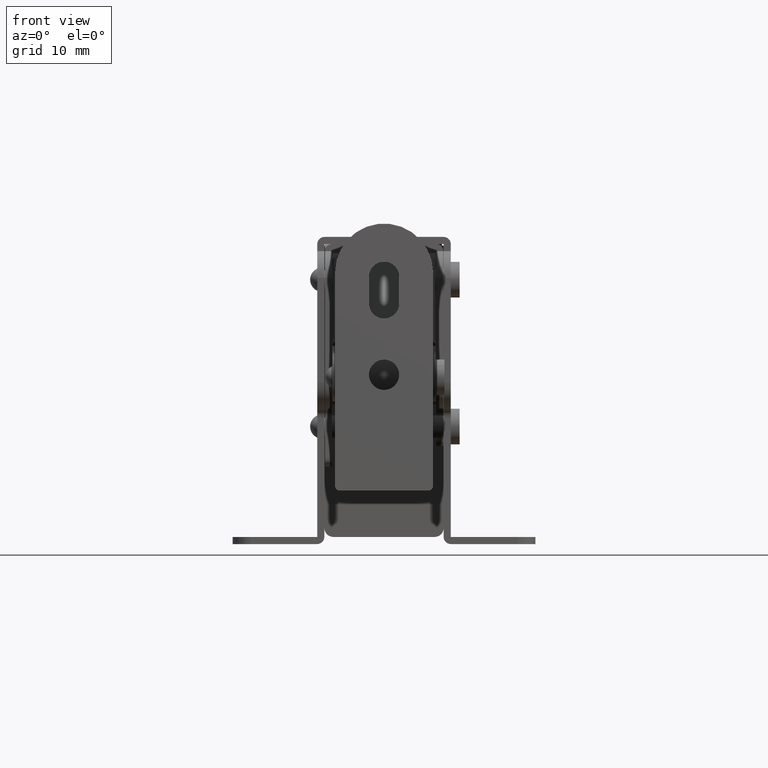
[diagram: clean part render]
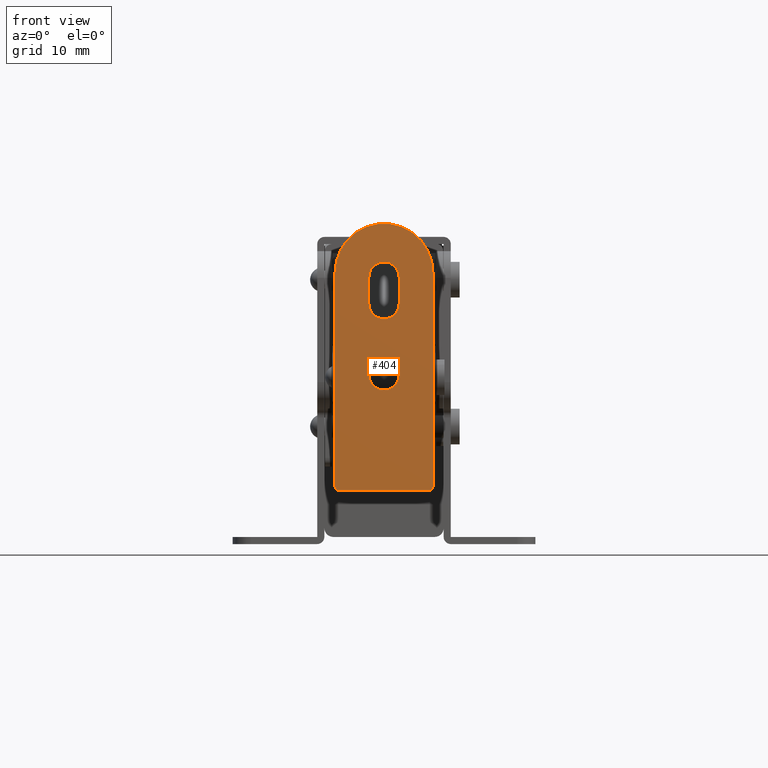
[diagram: same view with one face highlighted and labeled with its STEP entity id]
A machine part, front view. The second image highlights one B-rep face of the part: STEP entity #404.
In plain terms, the highlighted planar face has unit normal (0, 1, 0).
Its self-contained STEP definition (entity closure, byte-faithful):
#404=ADVANCED_FACE('',(#2358,#2359,#2360),#2357,.F.);
#2357=PLANE('',#4407);
#2358=FACE_OUTER_BOUND('',#4408,.T.);
#2359=FACE_BOUND('',#4409,.T.);
#2360=FACE_BOUND('',#4410,.T.);
#4404=CARTESIAN_POINT('',(-6.60000000000E+00,0.00000000000E+00,3.29999659000E+01));
#4405=DIRECTION('',(0.00000000000E+00,-1.00000000000E+00,0.00000000000E+00));
#4406=DIRECTION('',(0.00000000000E+00,0.00000000000E+00,-1.00000000000E+00));
#4407=AXIS2_PLACEMENT_3D('',#4404,#4405,#4406);
#4408=EDGE_LOOP('',(#5977,#5978,#5979,#5980,#5981,#5982));
#4409=EDGE_LOOP('',(#5983,#5984,#5985,#5986));
#4410=EDGE_LOOP('',(#5987,#5988,#5989));
#5977=ORIENTED_EDGE('',*,*,#6966,.F.);
#5978=ORIENTED_EDGE('',*,*,#6967,.T.);
#5979=ORIENTED_EDGE('',*,*,#6968,.T.);
#5980=ORIENTED_EDGE('',*,*,#6969,.T.);
#5981=ORIENTED_EDGE('',*,*,#6970,.T.);
#5982=ORIENTED_EDGE('',*,*,#6971,.T.);
#5983=ORIENTED_EDGE('',*,*,#6972,.T.);
#5984=ORIENTED_EDGE('',*,*,#6973,.T.);
#5985=ORIENTED_EDGE('',*,*,#6974,.T.);
#5986=ORIENTED_EDGE('',*,*,#6975,.T.);
#5987=ORIENTED_EDGE('',*,*,#6976,.T.);
#5988=ORIENTED_EDGE('',*,*,#6977,.T.);
#5989=ORIENTED_EDGE('',*,*,#6978,.T.);
#6966=EDGE_CURVE('',#10300,#10301,#10302,.T.);
#6967=EDGE_CURVE('',#10300,#10308,#10309,.T.);
#6968=EDGE_CURVE('',#10308,#10315,#10316,.T.);
#6969=EDGE_CURVE('',#10315,#10322,#10323,.T.);
#6970=EDGE_CURVE('',#10322,#10329,#10330,.T.);
#6971=EDGE_CURVE('',#10329,#10301,#10336,.T.);
#6972=EDGE_CURVE('',#10342,#10343,#10344,.T.);
#6973=EDGE_CURVE('',#10343,#10350,#10351,.T.);
#6974=EDGE_CURVE('',#10350,#10357,#10358,.T.);
#6975=EDGE_CURVE('',#10357,#10342,#10364,.T.);
#6976=EDGE_CURVE('',#10370,#10371,#10372,.T.);
#6977=EDGE_CURVE('',#10371,#10378,#10379,.T.);
#6978=EDGE_CURVE('',#10378,#10370,#10385,.T.);
#10300=VERTEX_POINT('',#13872);
#10301=VERTEX_POINT('',#13873);
#10302=LINE('',#13874,#13875);
#10308=VERTEX_POINT('',#13877);
#10309=CIRCLE('',#13881,5.00000000000E-01);
#10315=VERTEX_POINT('',#13882);
#10316=LINE('',#13883,#13884);
#10322=VERTEX_POINT('',#13886);
#10323=CIRCLE('',#13890,5.00000000000E-01);
#10329=VERTEX_POINT('',#13891);
#10330=LINE('',#13892,#13893);
#10336=CIRCLE('',#13898,5.50000000000E+00);
#10342=VERTEX_POINT('',#13899);
#10343=VERTEX_POINT('',#13900);
#10344=CIRCLE('',#13904,1.70000000000E+00);
#10350=VERTEX_POINT('',#13905);
#10351=LINE('',#13906,#13907);
#10357=VERTEX_POINT('',#13909);
#10358=CIRCLE('',#13913,1.70000000000E+00);
#10364=LINE('',#13914,#13915);
#10370=VERTEX_POINT('',#13917);
#10371=VERTEX_POINT('',#13918);
#10372=CIRCLE('',#13922,1.70000000000E+00);
#10378=VERTEX_POINT('',#13923);
#10379=CIRCLE('',#13927,1.70000000000E+00);
#10385=CIRCLE('',#13931,1.70000000000E+00);
#13872=CARTESIAN_POINT('',(5.50000000000E+00,0.00000000000E+00,5.00000000000E-01));
#13873=CARTESIAN_POINT('',(5.50000000000E+00,0.00000000000E+00,2.44999690000E+01));
#13874=CARTESIAN_POINT('',(5.50000000000E+00,0.00000000000E+00,5.00000000000E-01));
#13875=VECTOR('',#13876,2.39999690000E+01);
#13876=DIRECTION('',(0.00000000000E+00,0.00000000000E+00,1.00000000000E+00));
#13877=CARTESIAN_POINT('',(5.00000000000E+00,0.00000000000E+00,0.00000000000E+00));
#13878=CARTESIAN_POINT('',(5.00000000000E+00,0.00000000000E+00,5.00000000000E-01));
#13879=DIRECTION('',(-0.00000000000E+00,1.00000000000E+00,0.00000000000E+00));
#13880=DIRECTION('',(-0.00000000000E+00,-0.00000000000E+00,1.00000000000E+00));
#13881=AXIS2_PLACEMENT_3D('',#13878,#13879,#13880);
#13882=CARTESIAN_POINT('',(-5.00000000000E+00,0.00000000000E+00,0.00000000000E+00));
#13883=CARTESIAN_POINT('',(5.00000000000E+00,0.00000000000E+00,0.00000000000E+00));
#13884=VECTOR('',#13885,1.00000000000E+01);
#13885=DIRECTION('',(-1.00000000000E+00,0.00000000000E+00,0.00000000000E+00));
#13886=CARTESIAN_POINT('',(-5.50000000000E+00,0.00000000000E+00,5.00000000000E-01));
#13887=CARTESIAN_POINT('',(-5.00000000000E+00,0.00000000000E+00,5.00000000000E-01));
#13888=DIRECTION('',(-0.00000000000E+00,1.00000000000E+00,0.00000000000E+00));
#13889=DIRECTION('',(-0.00000000000E+00,-0.00000000000E+00,1.00000000000E+00));
#13890=AXIS2_PLACEMENT_3D('',#13887,#13888,#13889);
#13891=CARTESIAN_POINT('',(-5.50000000000E+00,0.00000000000E+00,2.44999690000E+01));
#13892=CARTESIAN_POINT('',(-5.50000000000E+00,0.00000000000E+00,5.00000000000E-01));
#13893=VECTOR('',#13894,2.39999690000E+01);
#13894=DIRECTION('',(0.00000000000E+00,0.00000000000E+00,1.00000000000E+00));
#13895=CARTESIAN_POINT('',(0.00000000000E+00,0.00000000000E+00,2.44999690000E+01));
#13896=DIRECTION('',(-0.00000000000E+00,1.00000000000E+00,0.00000000000E+00));
#13897=DIRECTION('',(1.00000000000E+00,0.00000000000E+00,-1.83690953073E-16));
#13898=AXIS2_PLACEMENT_3D('',#13895,#13896,#13897);
#13899=CARTESIAN_POINT('',(-1.70000000000E+00,0.00000000000E+00,2.09999690000E+01));
#13900=CARTESIAN_POINT('',(1.70000000000E+00,0.00000000000E+00,2.09999690000E+01));
#13901=CARTESIAN_POINT('',(0.00000000000E+00,0.00000000000E+00,2.09999690000E+01));
#13902=DIRECTION('',(0.00000000000E+00,-1.00000000000E+00,0.00000000000E+00));
#13903=DIRECTION('',(-1.00000000000E+00,-0.00000000000E+00,-0.00000000000E+00));
#13904=AXIS2_PLACEMENT_3D('',#13901,#13902,#13903);
#13905=CARTESIAN_POINT('',(1.70000000000E+00,0.00000000000E+00,2.39999690000E+01));
#13906=CARTESIAN_POINT('',(1.70000000000E+00,0.00000000000E+00,2.09999690000E+01));
#13907=VECTOR('',#13908,3.00000000000E+00);
#13908=DIRECTION('',(0.00000000000E+00,0.00000000000E+00,1.00000000000E+00));
#13909=CARTESIAN_POINT('',(-1.70000000000E+00,0.00000000000E+00,2.39999690000E+01));
#13910=CARTESIAN_POINT('',(0.00000000000E+00,0.00000000000E+00,2.39999690000E+01));
#13911=DIRECTION('',(0.00000000000E+00,-1.00000000000E+00,0.00000000000E+00));
#13912=DIRECTION('',(-1.00000000000E+00,-0.00000000000E+00,-0.00000000000E+00));
#13913=AXIS2_PLACEMENT_3D('',#13910,#13911,#13912);
#13914=CARTESIAN_POINT('',(-1.70000000000E+00,0.00000000000E+00,2.39999690000E+01));
#13915=VECTOR('',#13916,3.00000000000E+00);
#13916=DIRECTION('',(0.00000000000E+00,0.00000000000E+00,-1.00000000000E+00));
#13917=CARTESIAN_POINT('',(1.70000000000E+00,0.00000000000E+00,1.30000000000E+01));
#13918=CARTESIAN_POINT('',(-1.76456702639E-04,0.00000000000E+00,1.46999999908E+01));
#13919=CARTESIAN_POINT('',(0.00000000000E+00,0.00000000000E+00,1.30000000000E+01));
#13920=DIRECTION('',(0.00000000000E+00,-1.00000000000E+00,0.00000000000E+00));
#13921=DIRECTION('',(1.00000000000E+00,0.00000000000E+00,-1.22460635382E-16));
#13922=AXIS2_PLACEMENT_3D('',#13919,#13920,#13921);
#13923=CARTESIAN_POINT('',(9.27261829425E-06,0.00000000000E+00,1.13000000000E+01));
#13924=CARTESIAN_POINT('',(0.00000000000E+00,0.00000000000E+00,1.30000000000E+01));
#13925=DIRECTION('',(0.00000000000E+00,-1.00000000000E+00,0.00000000000E+00));
#13926=DIRECTION('',(1.00000000000E+00,0.00000000000E+00,-1.22460635382E-16));
#13927=AXIS2_PLACEMENT_3D('',#13924,#13925,#13926);
#13928=CARTESIAN_POINT('',(0.00000000000E+00,0.00000000000E+00,1.30000000000E+01));
#13929=DIRECTION('',(0.00000000000E+00,-1.00000000000E+00,0.00000000000E+00));
#13930=DIRECTION('',(1.00000000000E+00,0.00000000000E+00,-1.22460635382E-16));
#13931=AXIS2_PLACEMENT_3D('',#13928,#13929,#13930);